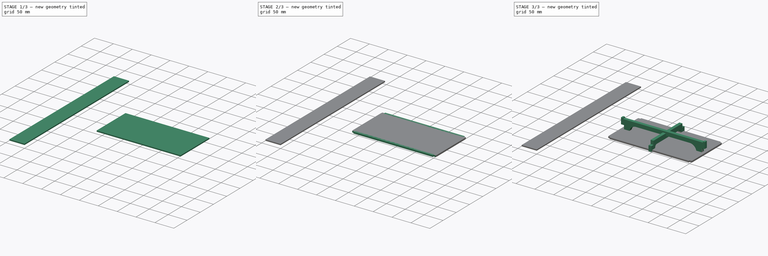
[diagram: build sequence overview — one tinted view per stage of 3, left to right]
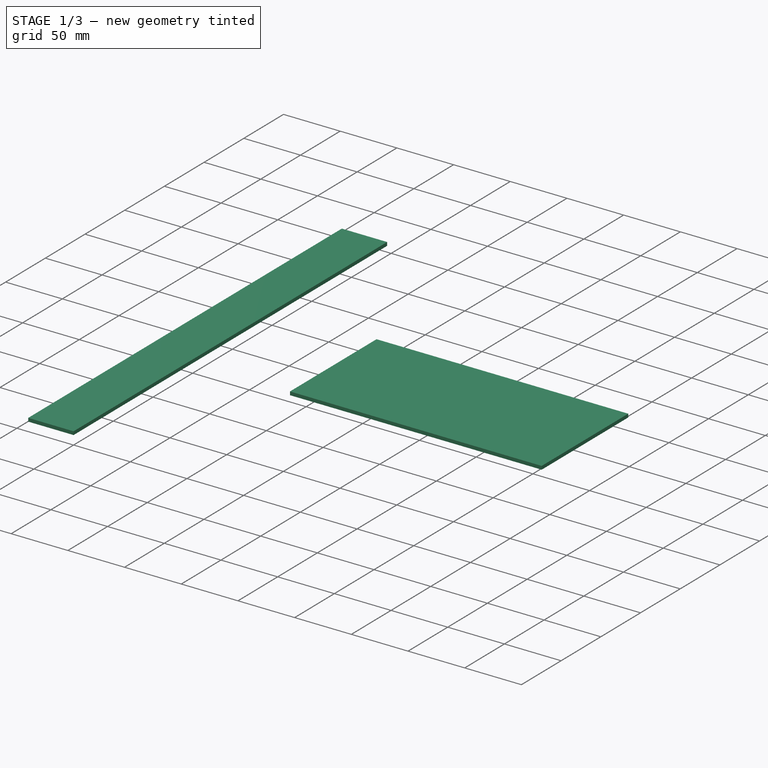
[diagram: stage 1 of 3 — iso view after this stage's code; geometry added in this stage tinted green]
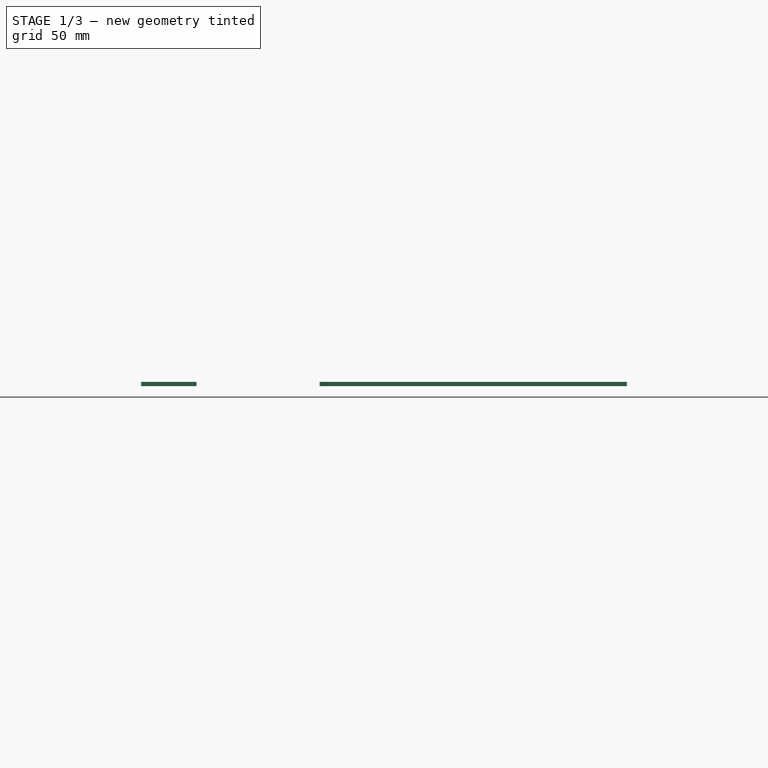
[diagram: stage 1 of 3 — front view after this stage's code; geometry added in this stage tinted green]
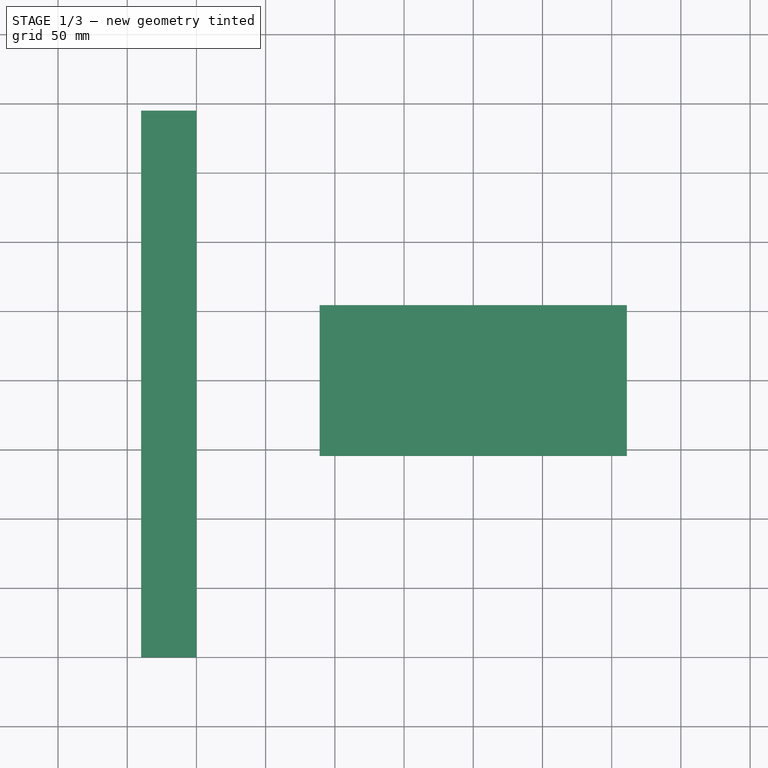
[diagram: stage 1 of 3 — top view after this stage's code; geometry added in this stage tinted green]
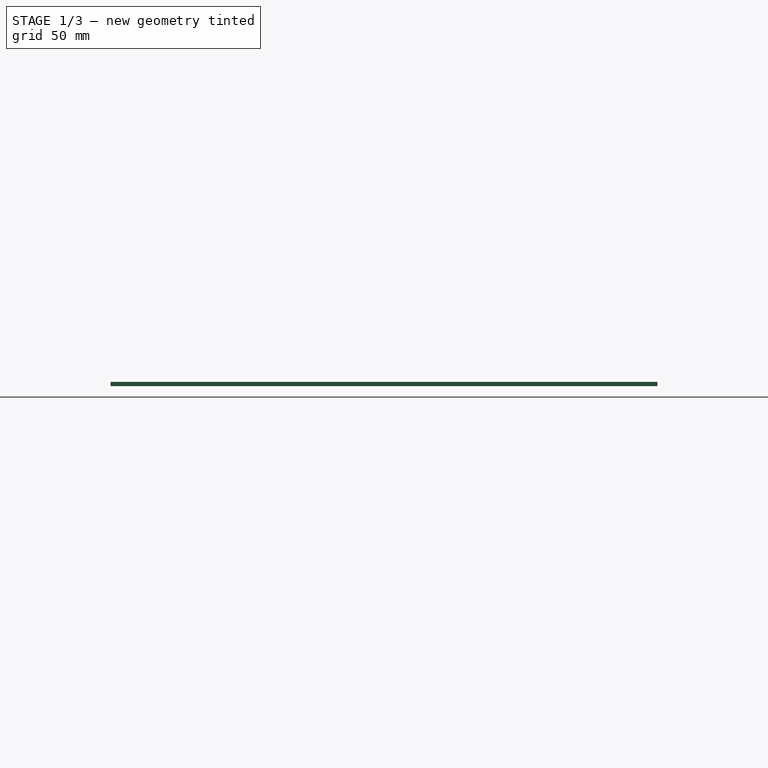
[diagram: stage 1 of 3 — right view after this stage's code; geometry added in this stage tinted green]
FCSTD DOCUMENT  (FreeCAD 0.19R24291 (Git))
Label: sibi_light-supports
License: All rights reserved
LicenseURL: http://en.wikipedia.org/wiki/All_rights_reserved
objects: Sketcher::SketchObject×6, PartDesign::Pad×6, PartDesign::Body×6, App::Part×6, TechDraw::DrawViewPart×6, TechDraw::DrawSVGTemplate×4, TechDraw::DrawPage×4
note: 24 computed .brp shape members not serialized (recipe doc carries the construction recipe); baked Part::Feature solids carry a one-line shape summary decoded from their .brp

FEATURE [PartDesign::Body] Body003
  Group = -> [Sketch003,Pad003]
  Origin = -> Origin007
  Tip = -> Pad003
FEATURE [App::Part] Part003  label="sidelight new"
  Group = -> [Body003]
  Origin = -> Origin006
FEATURE [TechDraw::DrawSVGTemplate] Template002
  Height = 210
  Orientation = 1
  Width = 297
FEATURE [TechDraw::DrawViewPart] View003
  CoarseView = false
  Direction = (0,0,1)
  Focus = 100
  HardHidden = false
  IsoCount = 0
  IsoHidden = false
  IsoVisible = false
  LockPosition = false
  Perspective = false
  Rotation = 0
  ScaleType = 0
  SeamHidden = false
  SeamVisible = true
  SmoothHidden = false
  SmoothVisible = true
  Source = -> [Body003]
  X = 148.5
  XDirection = (1,0,0)
  Y = 105
FEATURE [TechDraw::DrawPage] Page002
  KeepUpdated = true
  NextBalloonIndex = 1
  ProjectionType = 0
  Template = -> Template002
  Views = -> [View003]
FEATURE [Sketcher::SketchObject] Sketch004
  FullyConstrained = true
  MapMode = 5
  Support = -> [XY_Plane009]
  sketch-geometry (4):
    g0: LineSegment StartX=-111 StartY=54.5 StartZ=0 EndX=111 EndY=54.5 EndZ=0
    g1: LineSegment StartX=111 StartY=54.5 StartZ=0 EndX=111 EndY=-54.5 EndZ=0
    g2: LineSegment StartX=111 StartY=-54.5 StartZ=0 EndX=-111 EndY=-54.5 EndZ=0
    g3: LineSegment StartX=-111 StartY=-54.5 StartZ=0 EndX=-111 EndY=54.5 EndZ=0
  constraints (11):
    c: Coincident(g0,g1)
    c: Coincident(g1,g2)
    c: Coincident(g2,g3)
    c: Coincident(g3,g0)
    c: Horizontal(g0)
    c: Horizontal(g2)
    c: Vertical(g1)
    c: Vertical(g3)
    c: DistanceX(g0,g0) = 222
    c: DistanceY(g1,g1) = 109
    c: Symmetric(g0,g2,g-1)
FEATURE [PartDesign::Pad] Pad004
  Direction = (1,1,1)
  Length = 3
  Length2 = 100
  Profile = -> Sketch004
  Refine = true
  Type = 0
FEATURE [PartDesign::Body] Body004
  Group = -> [Sketch004,Pad004]
  Origin = -> Origin009
  Tip = -> Pad004
FEATURE [App::Part] Part004  label="backlight"
  Group = -> [Body004]
  Origin = -> Origin008
FEATURE [Sketcher::SketchObject] Sketch005
  FullyConstrained = true
  MapMode = 5
  Support = -> [XY_Plane011]
  sketch-geometry (4):
    g0: LineSegment StartX=-240 StartY=195 StartZ=0 EndX=-200 EndY=195 EndZ=0
    g1: LineSegment StartX=-200 StartY=195 StartZ=0 EndX=-200 EndY=-200 EndZ=0
    g2: LineSegment StartX=-200 StartY=-200 StartZ=0 EndX=-240 EndY=-200 EndZ=0
    g3: LineSegment StartX=-240 StartY=-200 StartZ=0 EndX=-240 EndY=195 EndZ=0
  constraints (12):
    c: Coincident(g0,g1)
    c: Coincident(g1,g2)
    c: Coincident(g2,g3)
    c: Coincident(g3,g0)
    c: Horizontal(g0)
    c: Horizontal(g2)
    c: Vertical(g1)
    c: Vertical(g3)
    c: DistanceY(g3,g3) = 395
    c: DistanceX(g0,g0) = 40
    c: DistanceX(g1,g-1) = 200
    c: DistanceY(g1,g-1) = 200
FEATURE [PartDesign::Pad] Pad005
  Direction = (1,1,1)
  Length = 3
  Length2 = 100
  Profile = -> Sketch005
  Refine = true
  Type = 0
FEATURE [PartDesign::Body] Body005
  Group = -> [Sketch005,Pad005]
  Origin = -> Origin011
  Tip = -> Pad005
FEATURE [App::Part] Part005  label="Camera Arm"
  Group = -> [Body005]
  Origin = -> Origin010
FEATURE [TechDraw::DrawSVGTemplate] Template003
  Height = 420
  Orientation = 1
  Width = 594
FEATURE [TechDraw::DrawViewPart] View005
  CoarseView = false
  Direction = (0,0,1)
  Focus = 100
  HardHidden = false
  IsoCount = 0
  IsoHidden = false
  IsoVisible = false
  LockPosition = false
  Perspective = false
  Rotation = 0
  ScaleType = 0
  SeamHidden = false
  SeamVisible = true
  SmoothHidden = false
  SmoothVisible = true
  Source = -> [Body004]
  X = 297
  XDirection = (1,0,0)
  Y = 210
FEATURE [TechDraw::DrawViewPart] View006
  CoarseView = false
  Direction = (0,0,1)
  Focus = 100
  HardHidden = false
  IsoCount = 0
  IsoHidden = false
  IsoVisible = false
  LockPosition = false
  Perspective = false
  Rotation = 0
  ScaleType = 0
  SeamHidden = false
  SeamVisible = true
  SmoothHidden = false
  SmoothVisible = true
  Source = -> [Body005]
  X = 139.417
  XDirection = (1,0,0)
  Y = 208.618
FEATURE [TechDraw::DrawPage] Page003
  KeepUpdated = true
  NextBalloonIndex = 1
  ProjectionType = 0
  Template = -> Template003
  Views = -> [View005,View006]
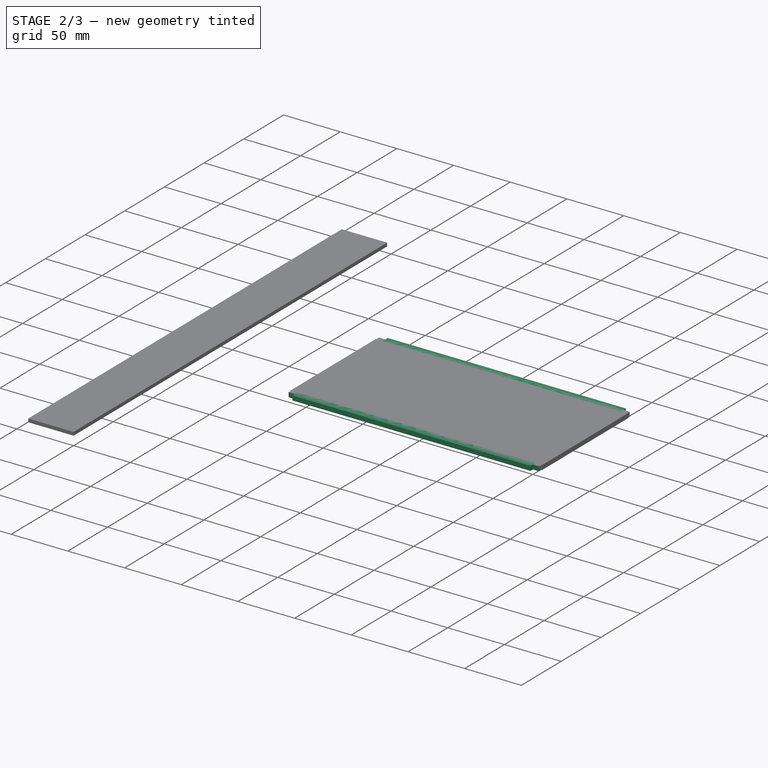
[diagram: stage 2 of 3 — iso view after this stage's code; geometry added in this stage tinted green]
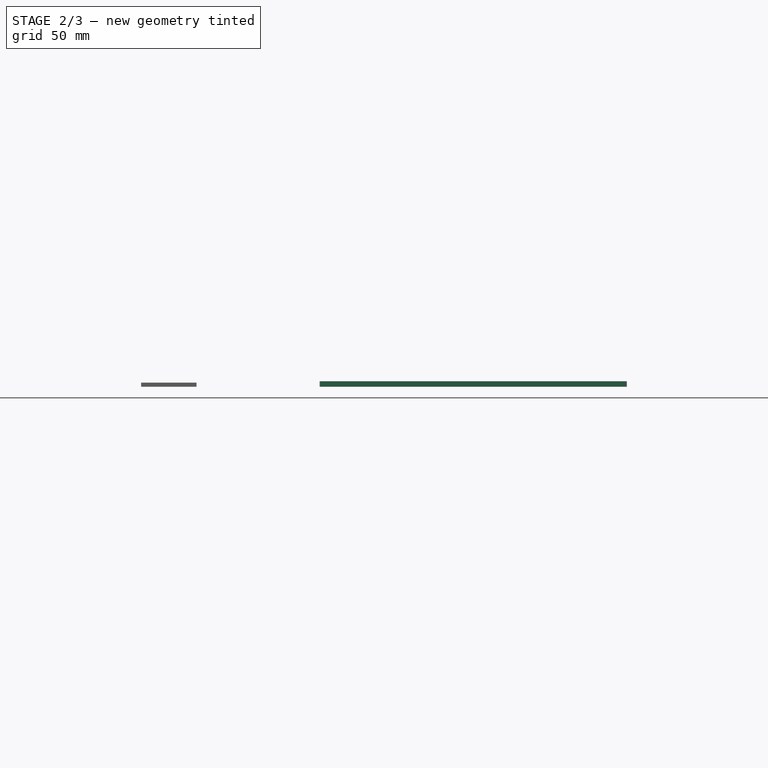
[diagram: stage 2 of 3 — front view after this stage's code; geometry added in this stage tinted green]
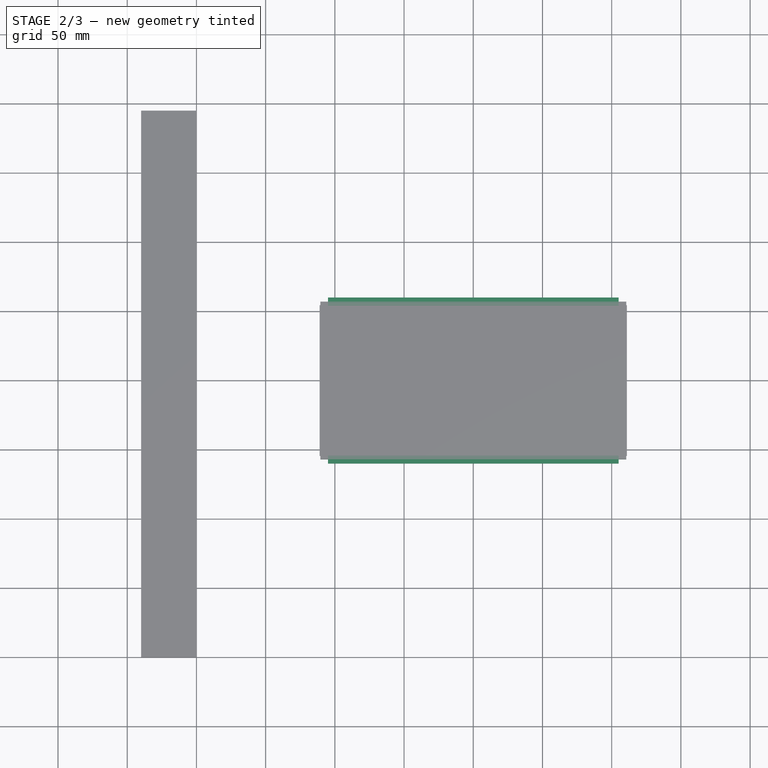
[diagram: stage 2 of 3 — top view after this stage's code; geometry added in this stage tinted green]
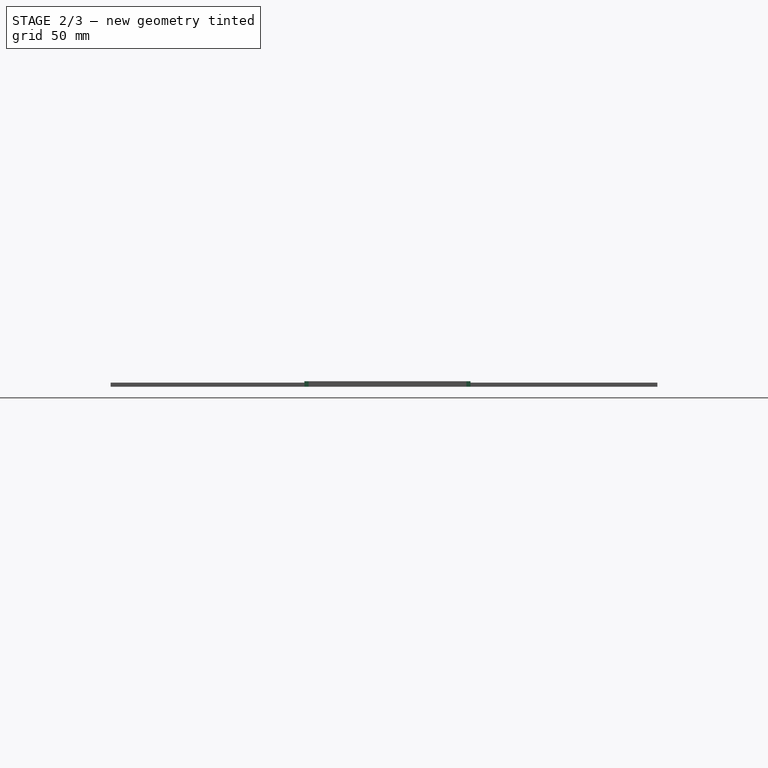
[diagram: stage 2 of 3 — right view after this stage's code; geometry added in this stage tinted green]
FEATURE [PartDesign::Body] Body001
  Group = -> [Sketch001,Pad001]
  Origin = -> Origin003
  Tip = -> Pad001
FEATURE [App::Part] Part001  label="long"
  Group = -> [Body001]
  Origin = -> Origin002
FEATURE [TechDraw::DrawSVGTemplate] Template
  Height = 297
  Orientation = 1
  Width = 420
FEATURE [TechDraw::DrawViewPart] View
  CoarseView = false
  Direction = (1,0,0)
  Focus = 100
  HardHidden = false
  IsoCount = 0
  IsoHidden = false
  IsoVisible = false
  LockPosition = false
  Perspective = false
  Rotation = 0
  ScaleType = 0
  SeamHidden = false
  SeamVisible = true
  SmoothHidden = false
  SmoothVisible = true
  Source = -> [Body]
  X = 91.6528
  XDirection = (0.866,0.5,0)
  Y = 262.974
FEATURE [TechDraw::DrawViewPart] View001
  CoarseView = false
  Direction = (0,-1,0)
  Focus = 100
  HardHidden = false
  IsoCount = 0
  IsoHidden = false
  IsoVisible = false
  LockPosition = false
  Perspective = false
  Rotation = 0
  ScaleType = 0
  SeamHidden = false
  SeamVisible = true
  SmoothHidden = false
  SmoothVisible = true
  Source = -> [Body001]
  X = 139.852
  XDirection = (0.866,0.5,0)
  Y = 222.521
FEATURE [TechDraw::DrawPage] Page  label="Supports"
  KeepUpdated = true
  NextBalloonIndex = 1
  ProjectionType = 0
  Template = -> Template
  Views = -> [View,View001]
FEATURE [Sketcher::SketchObject] Sketch002
  FullyConstrained = true
  MapMode = 5
  Support = -> [XY_Plane005]
  sketch-geometry (12):
    g0: LineSegment StartX=-105 StartY=60 StartZ=0 EndX=105 EndY=60 EndZ=0
    g1: LineSegment StartX=111 StartY=54 StartZ=0 EndX=111 EndY=-54 EndZ=0
    g2: LineSegment StartX=105 StartY=-60 StartZ=0 EndX=-105 EndY=-60 EndZ=0
    g3: LineSegment StartX=-111 StartY=-54 StartZ=0 EndX=-111 EndY=54 EndZ=0
    g4: LineSegment StartX=111 StartY=54 StartZ=0 EndX=105 EndY=54 EndZ=0
    g5: LineSegment StartX=105 StartY=54 StartZ=0 EndX=105 EndY=60 EndZ=0
    g6: LineSegment StartX=111 StartY=-54 StartZ=0 EndX=105 EndY=-54 EndZ=0
    g7: LineSegment StartX=105 StartY=-54 StartZ=0 EndX=105 EndY=-60 EndZ=0
    g8: LineSegment StartX=-111 StartY=-54 StartZ=0 EndX=-105 EndY=-54 EndZ=0
    g9: LineSegment StartX=-105 StartY=-54 StartZ=0 EndX=-105 EndY=-60 EndZ=0
    g10: LineSegment StartX=-111 StartY=54 StartZ=0 EndX=-105 EndY=54 EndZ=0
    g11: LineSegment StartX=-105 StartY=54 StartZ=0 EndX=-105 EndY=60 EndZ=0
  constraints (31):
    c: Horizontal(g0)
    c: Horizontal(g2)
    c: Vertical(g1)
    c: Vertical(g3)
    c: Coincident(g4,g5)
    c: Horizontal(g4)
    c: Vertical(g5)
    c: Coincident(g6,g7)
    c: Horizontal(g6)
    c: Coincident(g8,g9)
    c: Vertical(g9)
    c: Coincident(g10,g11)
    c: Coincident(g11,g0)
    c: Coincident(g10,g3)
    c: Coincident(g5,g0)
    c: Coincident(g4,g1)
    c: Coincident(g6,g1)
    c: Coincident(g7,g2)
    c: Coincident(g9,g2)
    c: Coincident(g8,g3)
    c: Tangent(g11,g9)
    c: Tangent(g5,g7)
    c: Tangent(g10,g4)
    c: Tangent(g8,g6)
    c: DistanceX(g3,g1) = 222
    c: DistanceX(g0,g0) = 210
    c: DistanceY(g2,g0) = 120
    c: Equal(g10,g4)
    c: Equal(g9,g11)
    c: DistanceY(g1,g1) = 108
    c: Symmetric(g8,g4,g-1)
FEATURE [PartDesign::Pad] Pad002
  Direction = (1,1,1)
  Length = 4
  Length2 = 100
  Profile = -> Sketch002
  Refine = true
  Type = 0
FEATURE [PartDesign::Body] Body002
  Group = -> [Sketch002,Pad002]
  Origin = -> Origin005
  Tip = -> Pad002
FEATURE [App::Part] Part002  label="sidelight OLD"
  Group = -> [Body002]
  Origin = -> Origin004
FEATURE [TechDraw::DrawSVGTemplate] Template001
  Height = 297
  Orientation = 1
  Width = 420
FEATURE [TechDraw::DrawViewPart] View002
  CoarseView = false
  Direction = (0,0,1)
  Focus = 100
  HardHidden = false
  IsoCount = 0
  IsoHidden = false
  IsoVisible = false
  LockPosition = false
  Perspective = false
  Rotation = 0
  ScaleType = 0
  SeamHidden = false
  SeamVisible = true
  SmoothHidden = false
  SmoothVisible = true
  Source = -> [Part002]
  X = 210
  XDirection = (1,0,0)
  Y = 148.5
FEATURE [TechDraw::DrawPage] Page001  label="Acrylic"
  KeepUpdated = true
  NextBalloonIndex = 1
  ProjectionType = 0
  Template = -> Template001
  Views = -> [View002]
FEATURE [Sketcher::SketchObject] Sketch003
  FullyConstrained = true
  MapMode = 5
  Support = -> [XY_Plane007]
  sketch-geometry (4):
    g0: LineSegment StartX=-110.5 StartY=57 StartZ=0 EndX=110.5 EndY=57 EndZ=0
    g1: LineSegment StartX=110.5 StartY=57 StartZ=0 EndX=110.5 EndY=-57 EndZ=0
    g2: LineSegment StartX=110.5 StartY=-57 StartZ=0 EndX=-110.5 EndY=-57 EndZ=0
    g3: LineSegment StartX=-110.5 StartY=-57 StartZ=0 EndX=-110.5 EndY=57 EndZ=0
  constraints (11):
    c: Coincident(g0,g1)
    c: Coincident(g1,g2)
    c: Coincident(g2,g3)
    c: Coincident(g3,g0)
    c: Horizontal(g0)
    c: Horizontal(g2)
    c: Vertical(g1)
    c: Vertical(g3)
    c: DistanceX(g0,g0) = 221
    c: Symmetric(g0,g1,g-1)
    c: DistanceY(g1,g1) = 114
FEATURE [PartDesign::Pad] Pad003
  Direction = (1,1,1)
  Length = 4
  Length2 = 100
  Profile = -> Sketch003
  Refine = true
  Type = 0
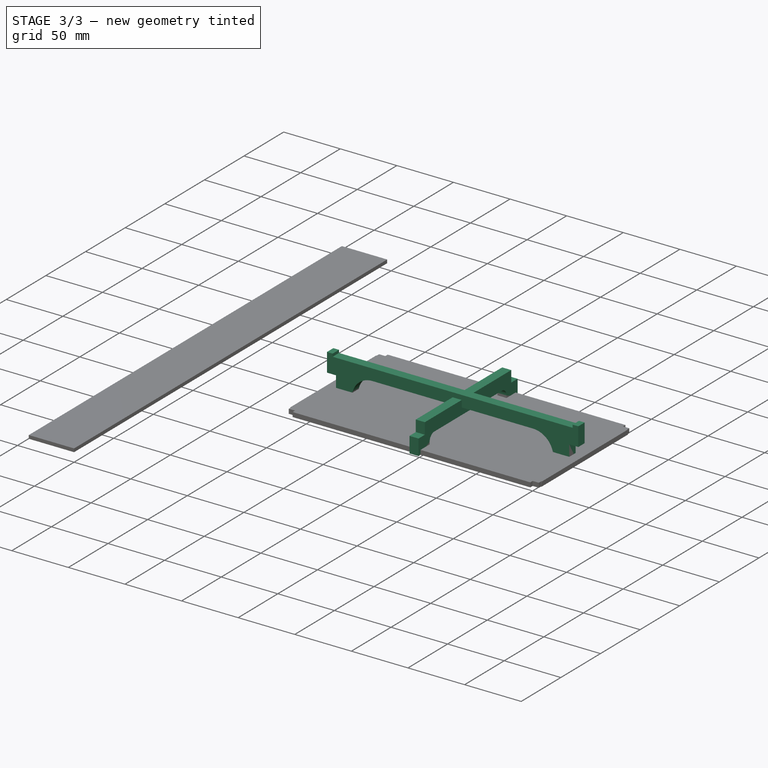
[diagram: stage 3 of 3 — iso view after this stage's code; geometry added in this stage tinted green]
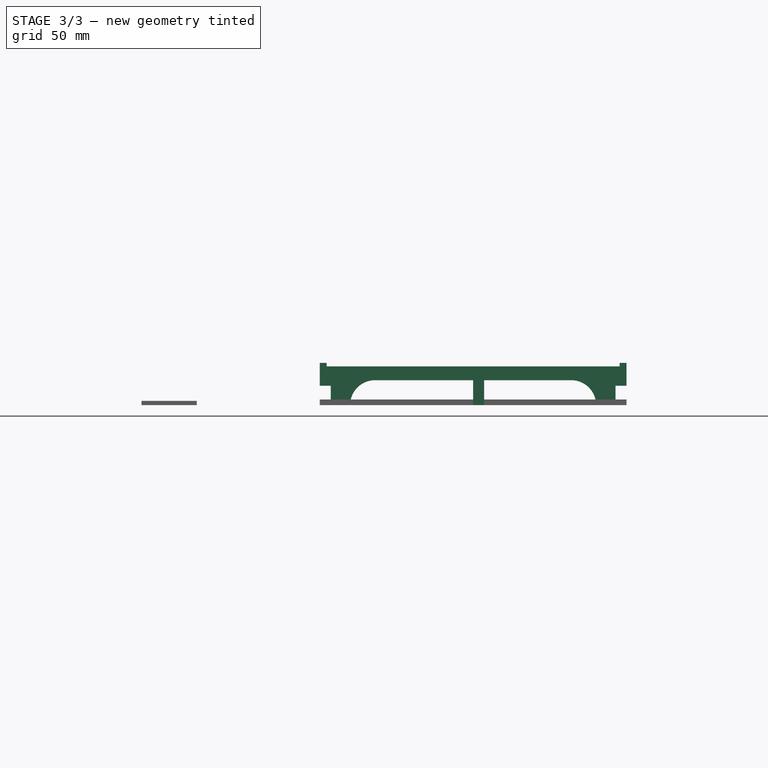
[diagram: stage 3 of 3 — front view after this stage's code; geometry added in this stage tinted green]
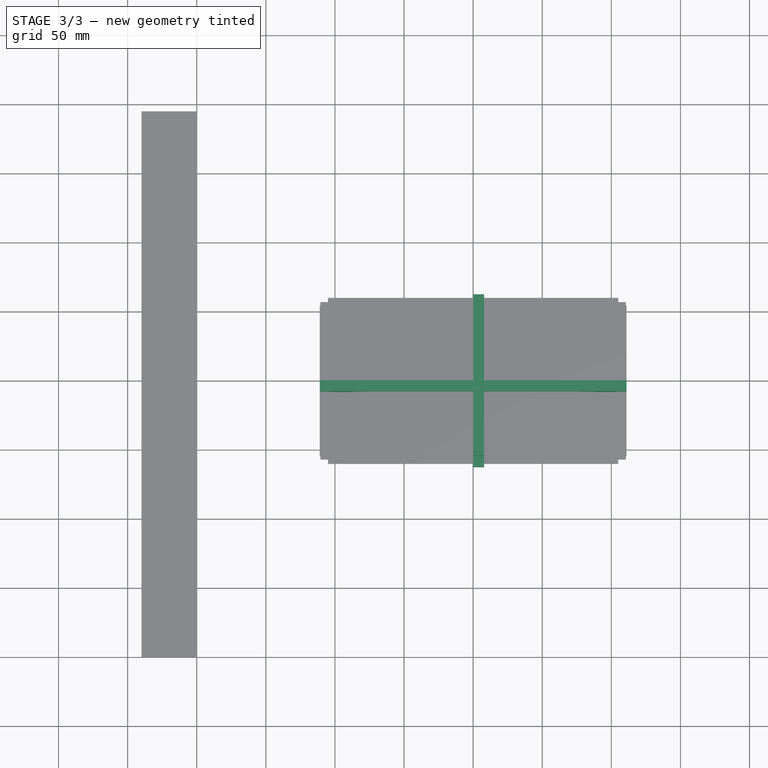
[diagram: stage 3 of 3 — top view after this stage's code; geometry added in this stage tinted green]
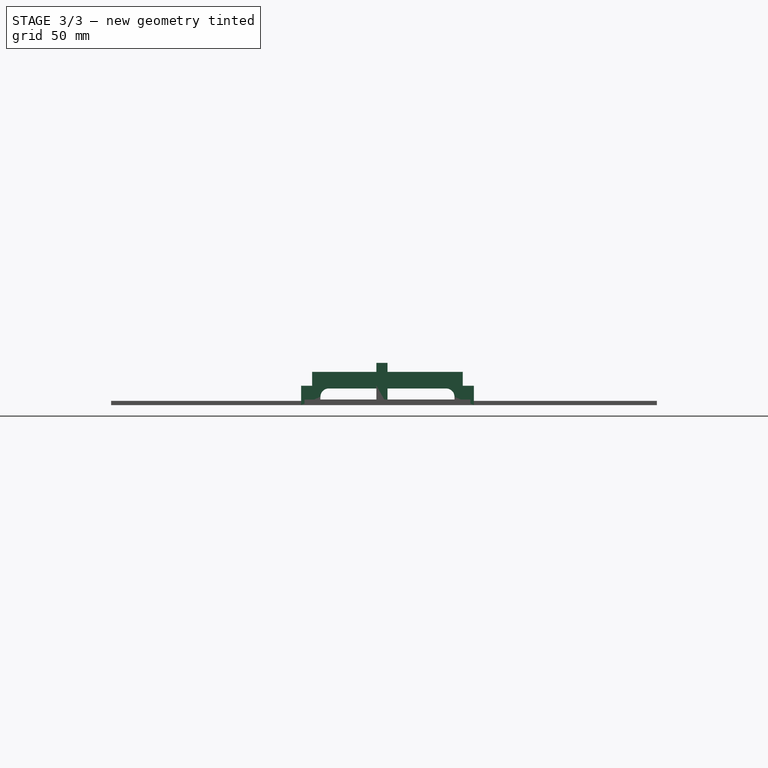
[diagram: stage 3 of 3 — right view after this stage's code; geometry added in this stage tinted green]
FEATURE [Sketcher::SketchObject] Sketch
  FullyConstrained = true
  MapMode = 5
  Placement = pos=(0,0,0) rot=(0.57735,0.57735,0.57735;2.0944rad)
  Support = -> [YZ_Plane001]
  sketch-geometry (14):
    g0: LineSegment StartX=-62.5 StartY=0 StartZ=0 EndX=-62.5 EndY=14 EndZ=0
    g1: LineSegment StartX=-62.5 StartY=14 StartZ=0 EndX=-54.5 EndY=14 EndZ=0
    g2: LineSegment StartX=-54.5 StartY=14 StartZ=0 EndX=-54.5 EndY=24 EndZ=0
    g3: LineSegment StartX=-54.5 StartY=24 StartZ=0 EndX=54.5 EndY=24 EndZ=0
    g4: LineSegment StartX=54.5 StartY=24 StartZ=0 EndX=54.5 EndY=14 EndZ=0
    g5: LineSegment StartX=54.5 StartY=14 StartZ=0 EndX=62.5 EndY=14 EndZ=0
    g6: LineSegment StartX=62.5 StartY=14 StartZ=0 EndX=62.5 EndY=0 EndZ=0
    g7: LineSegment StartX=62.5 StartY=0 StartZ=0 EndX=48.5 EndY=0 EndZ=0
    g8: LineSegment StartX=48.5 StartY=0 StartZ=0 EndX=48.5 EndY=6.00003 EndZ=0
    g9: LineSegment StartX=42.5 StartY=12 StartZ=0 EndX=-42.5 EndY=12 EndZ=0
    g10: LineSegment StartX=-48.5 StartY=6.00003 StartZ=0 EndX=-48.5 EndY=0 EndZ=0
    g11: LineSegment StartX=-48.5 StartY=0 StartZ=0 EndX=-62.5 EndY=0 EndZ=0
    g12: ArcOfCircle CenterX=-42.5 CenterY=6 CenterZ=0 NormalX=0 NormalY=0 NormalZ=1 AngleXU=0 Radius=6 StartAngle=1.5708 EndAngle=3.14159
    g13: ArcOfCircle CenterX=42.5 CenterY=6 CenterZ=0 NormalX=0 NormalY=0 NormalZ=1 AngleXU=0 Radius=6 StartAngle=5.10214e-06 EndAngle=1.5708
  constraints (43):
    c: PointOnObject(g0,g-1)
    c: Vertical(g0)
    c: Coincident(g0,g1)
    c: Horizontal(g1)
    c: Coincident(g1,g2)
    c: Vertical(g2)
    c: Coincident(g2,g3)
    c: Horizontal(g3)
    c: Coincident(g3,g4)
    c: Vertical(g4)
    c: Coincident(g4,g5)
    c: Horizontal(g5)
    c: Coincident(g5,g6)
    c: Vertical(g6)
    c: Coincident(g6,g7)
    c: PointOnObject(g7,g-1)
    c: Coincident(g7,g8)
    c: Vertical(g8)
    c: Horizontal(g9)
    c: PointOnObject(g10,g-1)
    c: Vertical(g10)
    c: Coincident(g10,g11)
    c: Coincident(g11,g0)
    c: Coincident(g9,g13)
    c: Coincident(g8,g13)
    c: Coincident(g12,g9)
    c: Tangent(g12,g9)
    c: Coincident(g10,g12)
    c: Tangent(g12,g10)
    c: Tangent(g13,g9)
    c: Tangent(g13,g8)
    c: Equal(g1,g5)
    c: Equal(g11,g7)
    c: Equal(g0,g6)
    c: Symmetric(g0,g6,g-1)
    c: DistanceY(g0,g2) = 24
    c: DistanceY(g0,g0) = 14
    c: DistanceX(g1,g1) = 8
    c: DistanceX(g11,g11) = 14
    c: DistanceY(g10,g9) = 12
    c: Equal(g12,g13)
    c: DistanceX(g0,g6) = 125
    c: Radius(g12) = 6
FEATURE [PartDesign::Pad] Pad
  Direction = (1,1,1)
  Length = 8
  Length2 = 100
  Placement = pos=(0,0,0) rot=(0.57735,0.57735,0.57735;2.0944rad)
  Profile = -> Sketch
  Refine = true
  Type = 0
FEATURE [PartDesign::Body] Body
  Group = -> [Sketch,Pad]
  Origin = -> Origin001
  Tip = -> Pad
FEATURE [App::Part] Part  label="short"
  Group = -> [Body]
  Origin = -> Origin
FEATURE [Sketcher::SketchObject] Sketch001
  FullyConstrained = true
  MapMode = 5
  Placement = pos=(0,0,0) rot=(1,0,0;1.5708rad)
  Support = -> [XZ_Plane003]
  sketch-geometry (17):
    g0: LineSegment StartX=-103 StartY=0 StartZ=0 EndX=-103 EndY=14 EndZ=0
    g1: LineSegment StartX=-103 StartY=14 StartZ=0 EndX=-111 EndY=14 EndZ=0
    g2: LineSegment StartX=-111 StartY=14 StartZ=0 EndX=-111 EndY=30.5 EndZ=0
    g3: LineSegment StartX=111 StartY=30.5 StartZ=0 EndX=111 EndY=14 EndZ=0
    g4: LineSegment StartX=111 StartY=14 StartZ=0 EndX=103 EndY=14 EndZ=0
    g5: LineSegment StartX=103 StartY=14 StartZ=0 EndX=103 EndY=-1.8e-15 EndZ=0
    g6: LineSegment StartX=103 StartY=-1.8e-15 StartZ=0 EndX=89 EndY=1e-16 EndZ=0
    g7: LineSegment StartX=-103 StartY=0 StartZ=0 EndX=-89 EndY=2.2e-15 EndZ=0
    g8: ArcOfCircle CenterX=-71 CenterY=0 CenterZ=0 NormalX=0 NormalY=0 NormalZ=1 AngleXU=0 Radius=18 StartAngle=1.5708 EndAngle=3.14159
    g9: ArcOfCircle CenterX=71 CenterY=0 CenterZ=0 NormalX=0 NormalY=0 NormalZ=1 AngleXU=0 Radius=18 StartAngle=0 EndAngle=1.5708
    g10: LineSegment StartX=-71 StartY=18 StartZ=0 EndX=71 EndY=18 EndZ=0
    g11: LineSegment StartX=-111 StartY=30.5 StartZ=0 EndX=-106 EndY=30.5 EndZ=0
    g12: LineSegment StartX=-106 StartY=30.5 StartZ=0 EndX=-106 EndY=28 EndZ=0
    g13: LineSegment StartX=-106 StartY=28 StartZ=0 EndX=106 EndY=28 EndZ=0
    g14: LineSegment StartX=106 StartY=28 StartZ=0 EndX=106 EndY=30.5 EndZ=0
    g15: LineSegment StartX=106 StartY=30.5 StartZ=0 EndX=111 EndY=30.5 EndZ=0
    g16: LineSegment StartX=111 StartY=30.5 StartZ=0 EndX=111 EndY=14 EndZ=0
  constraints (50):
    c: Vertical(g0)
    c: Coincident(g0,g1)
    c: Coincident(g1,g2)
    c: Vertical(g2)
    c: Vertical(g3)
    c: Coincident(g3,g4)
    c: Horizontal(g4)
    c: Coincident(g4,g5)
    c: Vertical(g5)
    c: Coincident(g5,g6)
    c: Coincident(g7,g0)
    c: Equal(g1,g4)
    c: Equal(g7,g6)
    c: DistanceY(g0,g2) = 30.5
    c: DistanceX(g1,g1) = 8
    c: DistanceX(g2,g3) = 222
    c: DistanceX(g7,g7) = 14
    c: Tangent(g6,g7)
    c: Tangent(g1,g4)
    c: DistanceY(g0,g1) = 14
    c: Tangent(g-1,g7)
    c: Tangent(g6,g-1)
    c: Symmetric(g7,g6,g-1)
    c: PointOnObject(g8,g-1)
    c: Coincident(g8,g7)
    c: PointOnObject(g9,g-1)
    c: Coincident(g9,g6)
    c: Equal(g8,g9)
    c: Coincident(g10,g8)
    c: Coincident(g10,g9)
    c: Angle(g9) = 1.5708
    c: Angle(g8) = 1.5708
    c: Radius(g8) = 18
    c: Coincident(g2,g11)
    c: Horizontal(g11)
    c: Coincident(g11,g12)
    c: Vertical(g12)
    c: Coincident(g12,g13)
    c: Horizontal(g13)
    c: Coincident(g13,g14)
    c: Vertical(g14)
    c: Coincident(g14,g15)
    c: Horizontal(g15)
    c: Coincident(g15,g16)
    c: Coincident(g16,g3)
    c: Coincident(g3,g15)
    c: DistanceY(g12,g12) = 2.5
    c: DistanceX(g11,g11) = 5
    c: Equal(g11,g15)
    c: Equal(g12,g14)
FEATURE [PartDesign::Pad] Pad001
  Direction = (1,1,1)
  Length = 8
  Length2 = 100
  Placement = pos=(0,0,0) rot=(1,0,0;1.5708rad)
  Profile = -> Sketch001
  Refine = true
  Type = 0
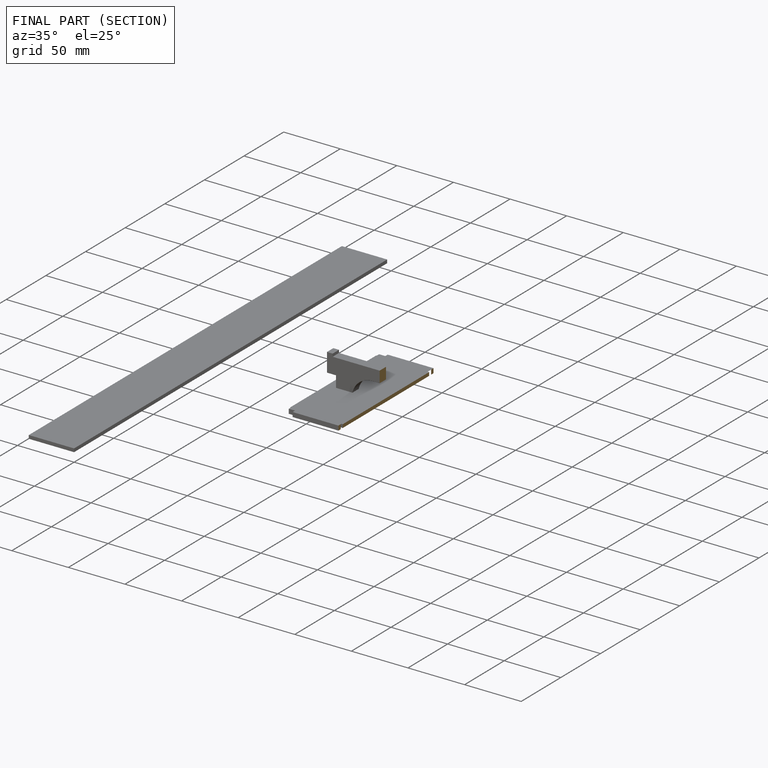
[diagram: finished part — half-section view (interior)]
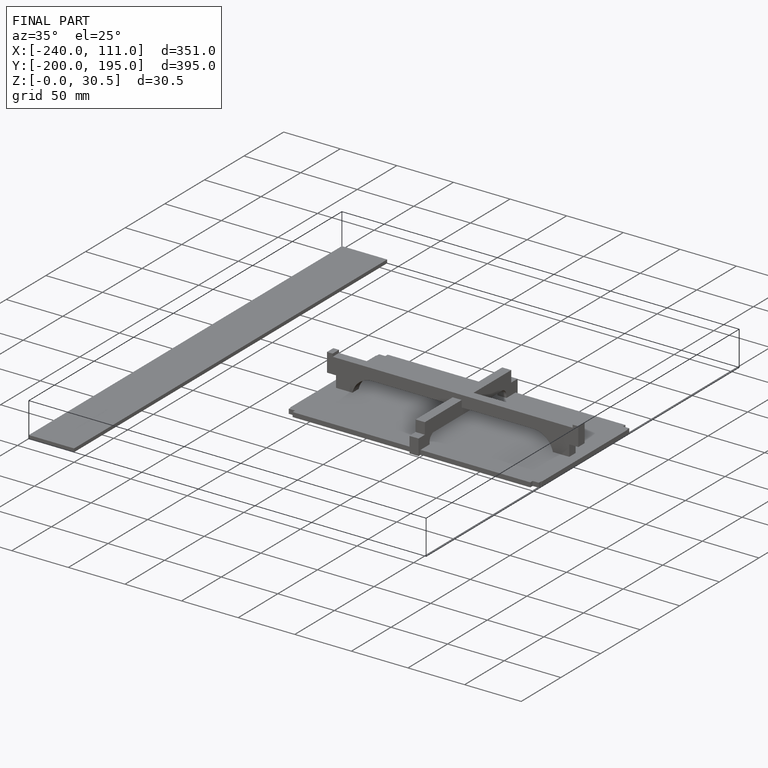
[diagram: finished part — iso view with bounding-box wireframe]
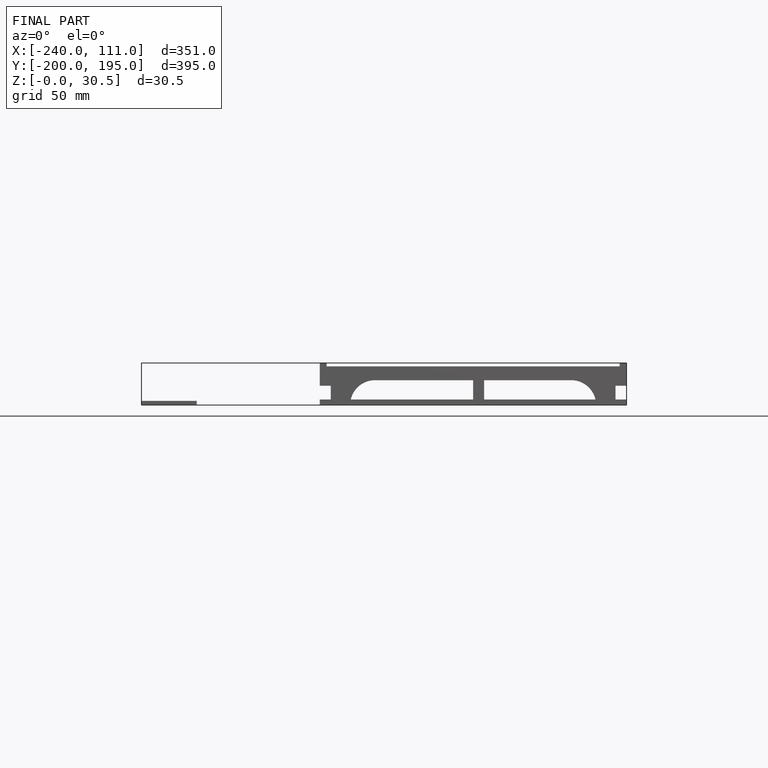
[diagram: finished part — front view with bounding-box wireframe]
